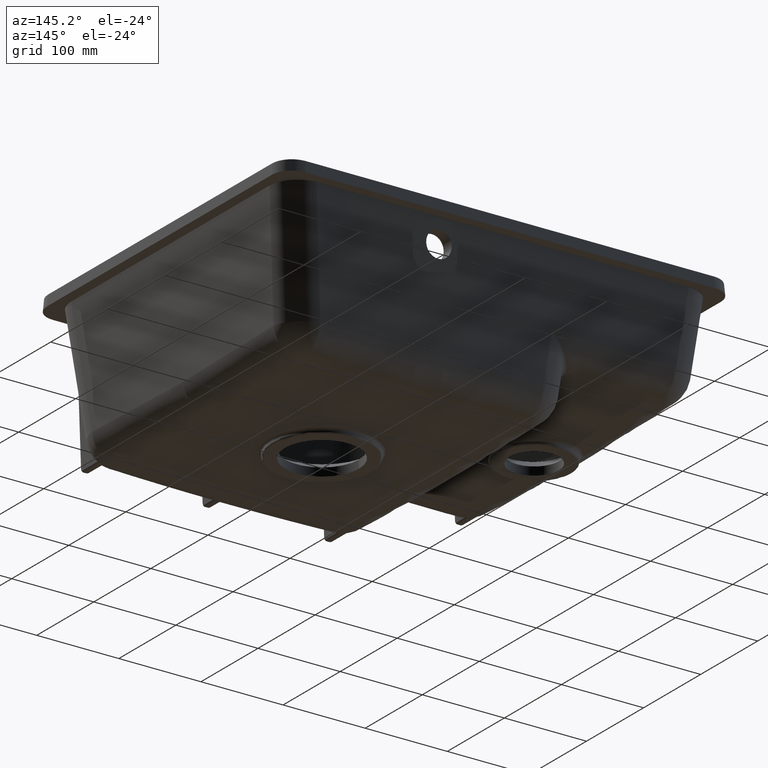
[diagram: clean part render]
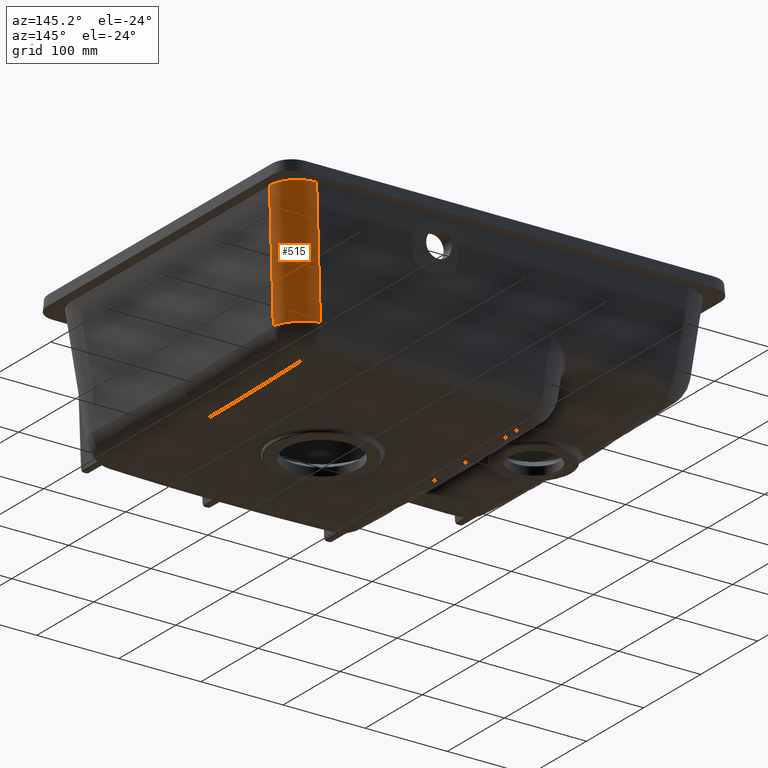
[diagram: same view with one face highlighted and labeled with its STEP entity id]
A machine part, auxiliary view. The second image highlights one B-rep face of the part: STEP entity #515.
In plain terms, the highlighted cylindrical surface (edge-blend (fillet) strip) has radius 34 mm, axis along (-0.104, -0.104, -0.9891).
Its self-contained STEP definition (entity closure, byte-faithful):
#154=CYLINDRICAL_SURFACE('',#2981,34.);
#232=FACE_OUTER_BOUND('',#777,.T.);
#389=CIRCLE('',#2980,34.);
#515=ADVANCED_FACE('',(#232),#154,.T.);
#777=EDGE_LOOP('',(#1371,#1372,#1373,#1374));
#979=B_SPLINE_CURVE_WITH_KNOTS('',3,(#5548,#5549,#5550,#5551),
 .UNSPECIFIED.,.F.,.F.,(4,4),(0.,1.),.UNSPECIFIED.);
#1100=ELLIPSE('',#2914,34.3735426371221,34.);
#1371=ORIENTED_EDGE('',*,*,#2423,.T.);
#1372=ORIENTED_EDGE('',*,*,#2424,.T.);
#1373=ORIENTED_EDGE('',*,*,#2406,.T.);
#1374=ORIENTED_EDGE('',*,*,#2299,.F.);
#2032=VERTEX_POINT('',#3906);
#2033=VERTEX_POINT('',#3908);
#2105=VERTEX_POINT('',#5552);
#2113=VERTEX_POINT('',#5800);
#2299=EDGE_CURVE('',#2032,#2033,#1100,.T.);
#2406=EDGE_CURVE('',#2105,#2033,#979,.T.);
#2423=EDGE_CURVE('',#2032,#2113,#2730,.T.);
#2424=EDGE_CURVE('',#2113,#2105,#389,.T.);
#2730=LINE('',#5799,#2831);
#2831=VECTOR('',#3371,1.);
#2914=AXIS2_PLACEMENT_3D('',#3907,#3223,#3224);
#2980=AXIS2_PLACEMENT_3D('',#5801,#3372,#3373);
#2981=AXIS2_PLACEMENT_3D('',#5802,#3374,#3375);
#3223=DIRECTION('',(-7.45625276597459E-15,0.,1.));
#3224=DIRECTION('',(-0.707106781186569,-0.707106781186526,-5.27236689306174E-15));
#3371=DIRECTION('',(-0.103962051184497,-0.103962051184498,-0.989132844377854));
#3372=DIRECTION('',(0.103962051184497,0.103962051184498,0.989132844377854));
#3373=DIRECTION('',(0.,0.994521895368274,-0.104528463267654));
#3374=DIRECTION('',(-0.103962051184497,-0.103962051184498,-0.989132844377854));
#3375=DIRECTION('',(0.,0.994521895368274,-0.104528463267654));
#3906=CARTESIAN_POINT('',(184.866907443313,174.002120648182,-12.9999999999981));
#3907=CARTESIAN_POINT('',(150.679625938153,173.628583585543,-12.9999999999984));
#3908=CARTESIAN_POINT('',(151.053163000791,207.815865090703,-12.9999999999984));
#5548=CARTESIAN_POINT('',(135.903542177658,192.666244267569,-157.139013854571));
#5549=CARTESIAN_POINT('',(140.953415785369,197.71611787528,-109.092675903048));
#5550=CARTESIAN_POINT('',(146.00328939308,202.765991482991,-61.0463379515248));
#5551=CARTESIAN_POINT('',(151.053163000791,207.815865090703,-13.0000000000017));
#5552=CARTESIAN_POINT('',(135.903560952954,192.666263042866,-157.138835219557));
#5799=CARTESIAN_POINT('',(165.790236918167,154.925450123036,-194.50239594936));
#5800=CARTESIAN_POINT('',(169.717287037981,158.85250024285,-157.139009879454));
#5801=CARTESIAN_POINT('',(135.903542177658,158.852499825048,-153.585046103471));
#5802=CARTESIAN_POINT('',(131.976492475646,154.925450123036,-190.94842819826));